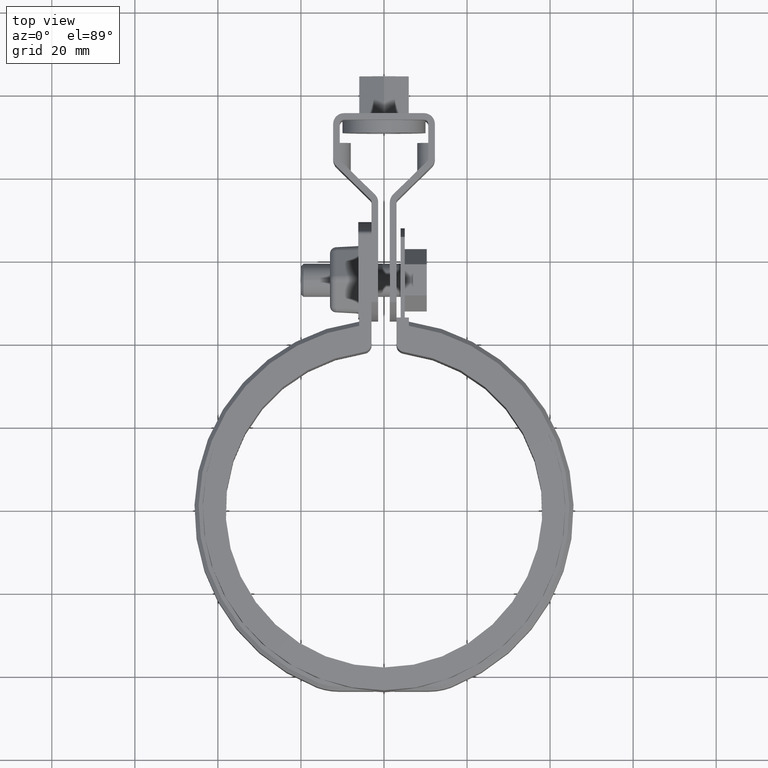
[diagram: clean part render]
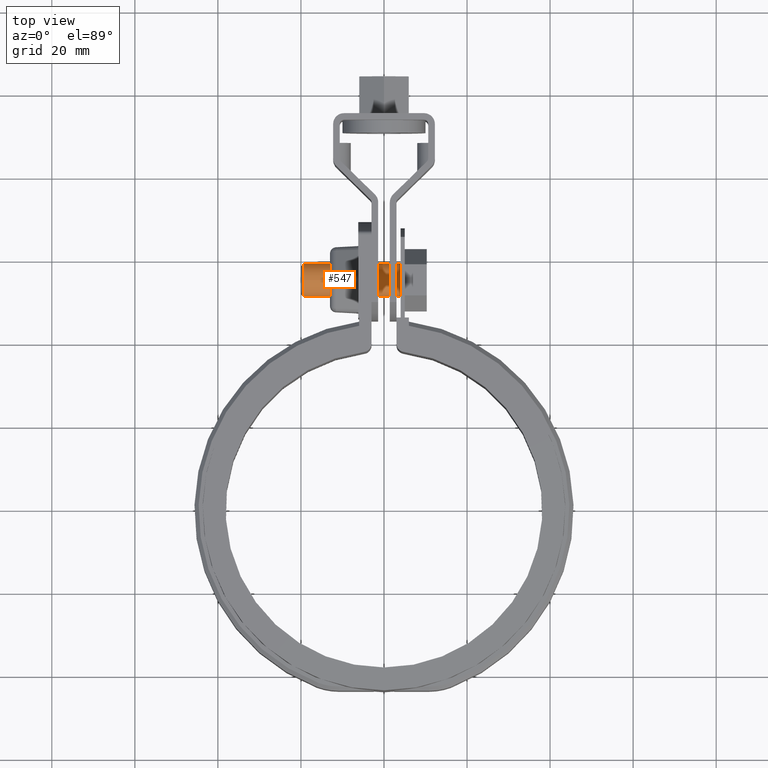
[diagram: same view with one face highlighted and labeled with its STEP entity id]
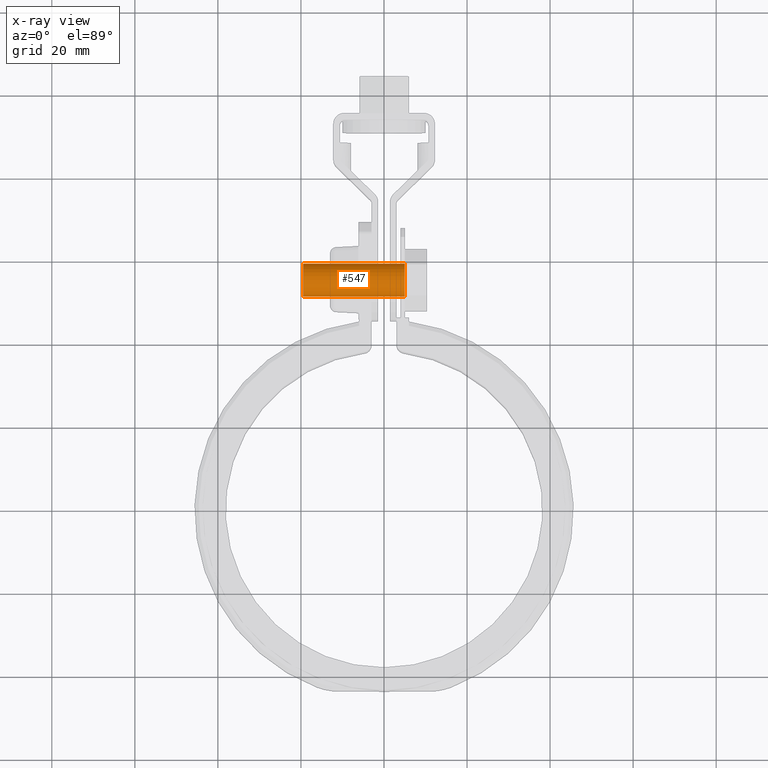
[diagram: x-ray of the same camera — body ghosted, the highlighted face saturated]
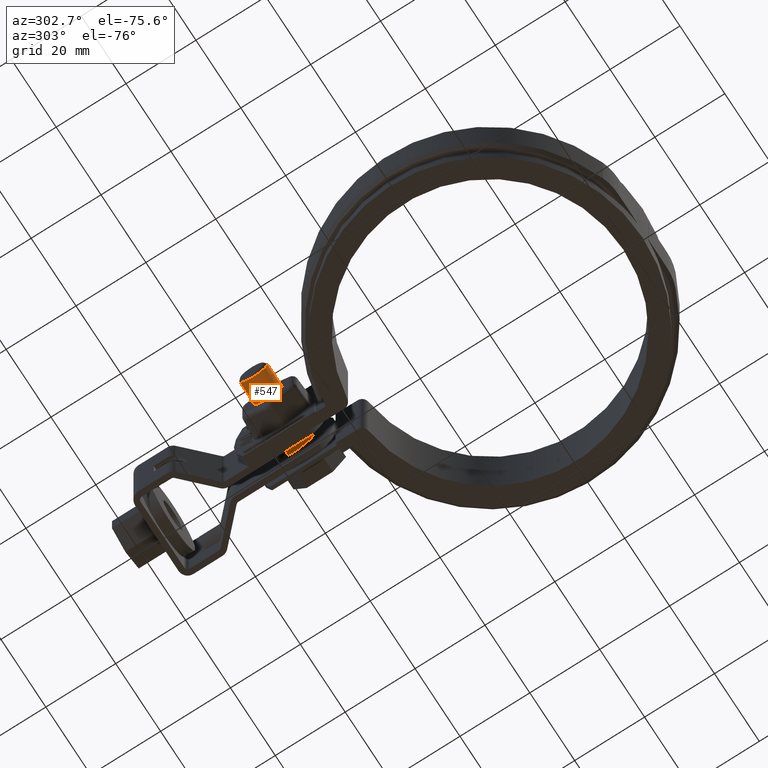
[diagram: same view with one face highlighted and labeled with its STEP entity id]
A machine part, top view. The second image highlights one B-rep face of the part: STEP entity #547.
The next image is the same camera in x-ray: the body ghosted, the highlighted face saturated — about 0% of this face is hidden behind the body in this view.
A second angle (auxiliary view) of the same face is appended — the face is thin or edge-on in the first view.
In plain terms, the highlighted cylindrical surface (bore or boss wall) has radius 4 mm, axis along (-1, 0, 0).
Its self-contained STEP definition (entity closure, byte-faithful):
#547 = ADVANCED_FACE( '', ( #1088, #1089 ), #1090, .T. );
#1088 = FACE_OUTER_BOUND( '', #2331, .T. );
#1089 = FACE_OUTER_BOUND( '', #2332, .T. );
#1090 = CYLINDRICAL_SURFACE( '', #2333, 4.00000000000000 );
#2331 = EDGE_LOOP( '', ( #4926 ) );
#2332 = EDGE_LOOP( '', ( #4927 ) );
#2333 = AXIS2_PLACEMENT_3D( '', #4928, #4929, #4930 );
#4926 = ORIENTED_EDGE( '', *, *, #6632, .F. );
#4927 = ORIENTED_EDGE( '', *, *, #6645, .T. );
#4928 = CARTESIAN_POINT( '', ( 16.2273837494972, 55.3451037457368, -1.73472347597681E-015 ) );
#4929 = DIRECTION( '', ( -1.00000000000000, 1.93710323854941E-062, 5.49394594078381E-076 ) );
#4930 = DIRECTION( '', ( -1.22727336632443E-091, -2.83616579201939E-014, 1.00000000000000 ) );
#6632 = EDGE_CURVE( '', #7881, #7881, #7882, .T. );
#6645 = EDGE_CURVE( '', #7901, #7901, #7902, .T. );
#7881 = VERTEX_POINT( '', #11369 );
#7882 = CIRCLE( '', #11370, 4.00000000000000 );
#7901 = VERTEX_POINT( '', #11401 );
#7902 = CIRCLE( '', #11402, 4.00000000000000 );
#11369 = CARTESIAN_POINT( '', ( 5.00000000000000, 55.3451037457367, 4.00000000000000 ) );
#11370 = AXIS2_PLACEMENT_3D( '', #13067, #13068, #13069 );
#11401 = CARTESIAN_POINT( '', ( -19.3750000000000, 55.3451037457369, -4.00000000000000 ) );
#11402 = AXIS2_PLACEMENT_3D( '', #13082, #13083, #13084 );
#13067 = CARTESIAN_POINT( '', ( 5.00000000000000, 55.3451037457368, -1.73472347597681E-015 ) );
#13068 = DIRECTION( '', ( 1.00000000000000, -1.93710323854941E-062, -5.49394594078381E-076 ) );
#13069 = DIRECTION( '', ( -1.22727336632443E-091, -2.83616579201939E-014, 1.00000000000000 ) );
#13082 = CARTESIAN_POINT( '', ( -19.3750000000000, 55.3451037457368, -1.73472347597681E-015 ) );
#13083 = DIRECTION( '', ( 1.00000000000000, -1.93710323854941E-062, -5.49394594078381E-076 ) );
#13084 = DIRECTION( '', ( 1.22727336632443E-091, 2.83616579201939E-014, -1.00000000000000 ) );